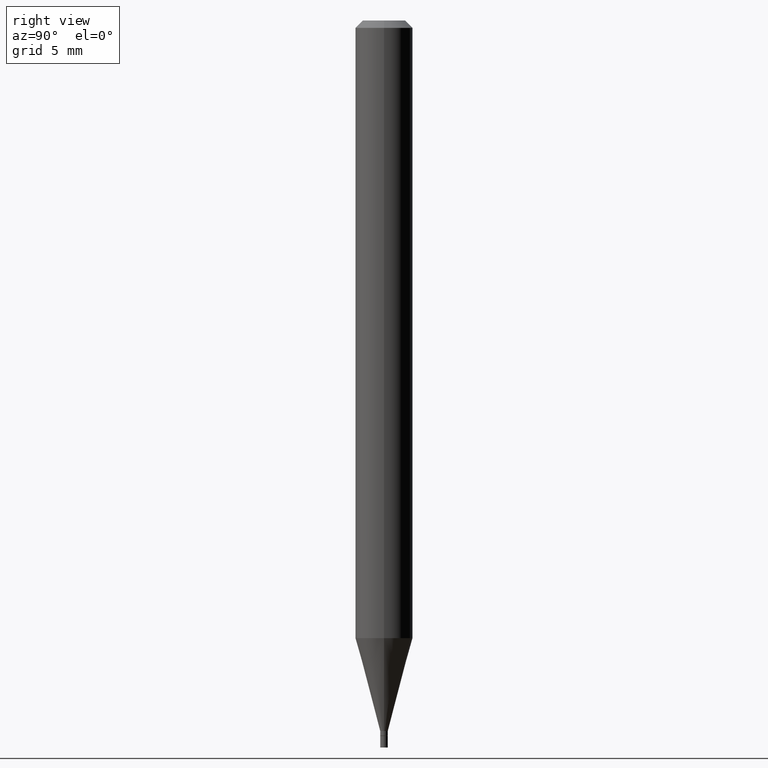
[diagram: clean part render]
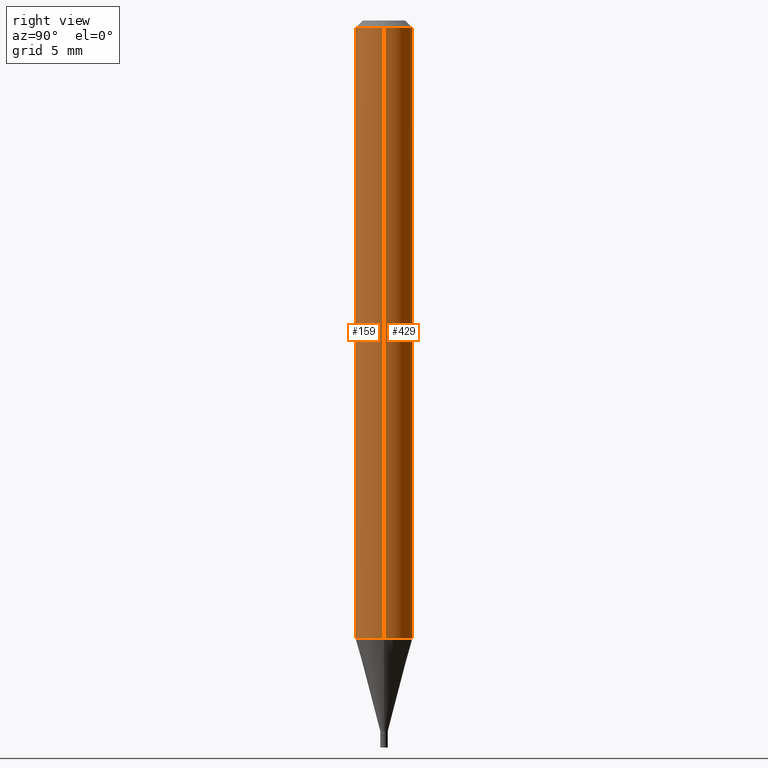
[diagram: same view with one multi-face feature highlighted, each face labeled with its STEP entity id]
A machine part, right view. The highlighted faces form ONE feature: a constant-radius fillet chain: 2 tangent blend faces with common blend radius 1.4999 mm. The faces share edges in the B-rep.
Their STEP definitions:
[1] entity #429 (Cylinder):
#14 = CARTESIAN_POINT ( 'NONE',  ( 0.05904999999999998445, -4.850083061227587038E-15, -1.271018998652473808 ) ) ;
#16 = ORIENTED_EDGE ( 'NONE', *, *, #204, .F. ) ;
#26 = FACE_OUTER_BOUND ( 'NONE', #51, .T. ) ;
#31 = CYLINDRICAL_SURFACE ( 'NONE', #219, 0.05904999999999999832 ) ;
#36 = DIRECTION ( 'NONE',  ( -2.445468806185136597E-29, 3.491481338843145583E-15, 1.000000000000000000 ) ) ;
#51 = EDGE_LOOP ( 'NONE', ( #459, #324, #16, #118 ) ) ;
#91 = DIRECTION ( 'NONE',  ( -2.445468806185136597E-29, 3.491481338843145583E-15, 1.000000000000000000 ) ) ;
#98 = DIRECTION ( 'NONE',  ( 1.000000000000000000, -6.982962677686273021E-15, 0.000000000000000000 ) ) ;
#108 = CIRCLE ( 'NONE', #189, 0.05904999999999999832 ) ;
#118 = ORIENTED_EDGE ( 'NONE', *, *, #275, .F. ) ;
#124 = CARTESIAN_POINT ( 'NONE',  ( 0.05904999999999999832, -4.123439461173740327E-16, 2.879382386107500220E-30 ) ) ;
#130 = DIRECTION ( 'NONE',  ( 1.000000000000000000, -6.982962677686266711E-15, 4.876176775795936353E-29 ) ) ;
#141 = VERTEX_POINT ( 'NONE', #154 ) ;
#154 = CARTESIAN_POINT ( 'NONE',  ( 0.05904999999999999832, -4.647161662000212105E-16, -0.01499999999999999944 ) ) ;
#168 = CARTESIAN_POINT ( 'NONE',  ( -0.05904999999999999832, -1.825480182130091092E-15, -0.01499999999999999944 ) ) ;
#169 = VERTEX_POINT ( 'NONE', #14 ) ;
#170 = CARTESIAN_POINT ( 'NONE',  ( 0.000000000000000000, 0.000000000000000000, 0.000000000000000000 ) ) ;
#175 = DIRECTION ( 'NONE',  ( -2.445468806185136877E-29, 3.491481338843145188E-15, 1.000000000000000000 ) ) ;
#189 = AXIS2_PLACEMENT_3D ( 'NONE', #414, #268, #98 ) ;
#195 = CARTESIAN_POINT ( 'NONE',  ( 3.668203209277705088E-31, -5.237222008264718399E-17, -0.01499999999999999944 ) ) ;
#199 = CARTESIAN_POINT ( 'NONE',  ( -0.05904999999999999832, 4.195754854663391478E-16, -2.904631170795521892E-30 ) ) ;
#204 = EDGE_CURVE ( 'NONE', #141, #315, #441, .T. ) ;
#211 = DIRECTION ( 'NONE',  ( -2.445468806185136877E-29, 3.491481338843145188E-15, 1.000000000000000000 ) ) ;
#219 = AXIS2_PLACEMENT_3D ( 'NONE', #170, #36, #130 ) ;
#256 = DIRECTION ( 'NONE',  ( 1.000000000000000000, -6.982962677686266711E-15, 0.000000000000000000 ) ) ;
#260 = EDGE_CURVE ( 'NONE', #296, #315, #375, .T. ) ;
#268 = DIRECTION ( 'NONE',  ( -2.445468806185136597E-29, 3.491481338843145583E-15, 1.000000000000000000 ) ) ;
#275 = EDGE_CURVE ( 'NONE', #169, #141, #395, .T. ) ;
#277 = CARTESIAN_POINT ( 'NONE',  ( -0.05904999999999998445, -4.018163629643874203E-15, -1.271018998652473808 ) ) ;
#285 = VECTOR ( 'NONE', #211, 39.37007874015748143 ) ;
#296 = VERTEX_POINT ( 'NONE', #277 ) ;
#315 = VERTEX_POINT ( 'NONE', #168 ) ;
#324 = ORIENTED_EDGE ( 'NONE', *, *, #260, .T. ) ;
#370 = VECTOR ( 'NONE', #175, 39.37007874015748143 ) ;
#375 = LINE ( 'NONE', #199, #285 ) ;
#395 = LINE ( 'NONE', #124, #370 ) ;
#399 = AXIS2_PLACEMENT_3D ( 'NONE', #195, #91, #256 ) ;
#414 = CARTESIAN_POINT ( 'NONE',  ( 3.108237313273292970E-29, -4.437739115110212907E-15, -1.271018998652473808 ) ) ;
#429 = ADVANCED_FACE ( 'NONE', ( #26 ), #31, .T. ) ;
#430 = EDGE_CURVE ( 'NONE', #169, #296, #108, .T. ) ;
#441 = CIRCLE ( 'NONE', #399, 0.05904999999999999832 ) ;
#459 = ORIENTED_EDGE ( 'NONE', *, *, #430, .T. ) ;
[2] entity #159 (Cylinder):
#4 = CIRCLE ( 'NONE', #458, 0.05904999999999999832 ) ;
#14 = CARTESIAN_POINT ( 'NONE',  ( 0.05904999999999998445, -4.850083061227587038E-15, -1.271018998652473808 ) ) ;
#50 = CARTESIAN_POINT ( 'NONE',  ( 0.000000000000000000, 0.000000000000000000, 0.000000000000000000 ) ) ;
#94 = ORIENTED_EDGE ( 'NONE', *, *, #260, .F. ) ;
#107 = DIRECTION ( 'NONE',  ( -2.445468806185136597E-29, 3.491481338843145583E-15, 1.000000000000000000 ) ) ;
#120 = CYLINDRICAL_SURFACE ( 'NONE', #158, 0.05904999999999999832 ) ;
#124 = CARTESIAN_POINT ( 'NONE',  ( 0.05904999999999999832, -4.123439461173740327E-16, 2.879382386107500220E-30 ) ) ;
#141 = VERTEX_POINT ( 'NONE', #154 ) ;
#154 = CARTESIAN_POINT ( 'NONE',  ( 0.05904999999999999832, -4.647161662000212105E-16, -0.01499999999999999944 ) ) ;
#158 = AXIS2_PLACEMENT_3D ( 'NONE', #50, #191, #329 ) ;
#159 = ADVANCED_FACE ( 'NONE', ( #364 ), #120, .T. ) ;
#168 = CARTESIAN_POINT ( 'NONE',  ( -0.05904999999999999832, -1.825480182130091092E-15, -0.01499999999999999944 ) ) ;
#169 = VERTEX_POINT ( 'NONE', #14 ) ;
#175 = DIRECTION ( 'NONE',  ( -2.445468806185136877E-29, 3.491481338843145188E-15, 1.000000000000000000 ) ) ;
#191 = DIRECTION ( 'NONE',  ( -2.445468806185136597E-29, 3.491481338843145583E-15, 1.000000000000000000 ) ) ;
#194 = AXIS2_PLACEMENT_3D ( 'NONE', #350, #107, #312 ) ;
#199 = CARTESIAN_POINT ( 'NONE',  ( -0.05904999999999999832, 4.195754854663391478E-16, -2.904631170795521892E-30 ) ) ;
#211 = DIRECTION ( 'NONE',  ( -2.445468806185136877E-29, 3.491481338843145188E-15, 1.000000000000000000 ) ) ;
#234 = DIRECTION ( 'NONE',  ( 1.000000000000000000, -6.982962677686273021E-15, 0.000000000000000000 ) ) ;
#260 = EDGE_CURVE ( 'NONE', #296, #315, #375, .T. ) ;
#273 = CARTESIAN_POINT ( 'NONE',  ( 3.108237313273292970E-29, -4.437739115110212907E-15, -1.271018998652473808 ) ) ;
#274 = DIRECTION ( 'NONE',  ( -2.445468806185136597E-29, 3.491481338843145583E-15, 1.000000000000000000 ) ) ;
#275 = EDGE_CURVE ( 'NONE', #169, #141, #395, .T. ) ;
#276 = EDGE_LOOP ( 'NONE', ( #94, #431, #451, #407 ) ) ;
#277 = CARTESIAN_POINT ( 'NONE',  ( -0.05904999999999998445, -4.018163629643874203E-15, -1.271018998652473808 ) ) ;
#285 = VECTOR ( 'NONE', #211, 39.37007874015748143 ) ;
#296 = VERTEX_POINT ( 'NONE', #277 ) ;
#312 = DIRECTION ( 'NONE',  ( 1.000000000000000000, -6.982962677686266711E-15, 0.000000000000000000 ) ) ;
#315 = VERTEX_POINT ( 'NONE', #168 ) ;
#319 = CIRCLE ( 'NONE', #194, 0.05904999999999999832 ) ;
#329 = DIRECTION ( 'NONE',  ( 1.000000000000000000, -6.982962677686266711E-15, 4.876176775795936353E-29 ) ) ;
#350 = CARTESIAN_POINT ( 'NONE',  ( 3.668203209277705088E-31, -5.237222008264718399E-17, -0.01499999999999999944 ) ) ;
#364 = FACE_OUTER_BOUND ( 'NONE', #276, .T. ) ;
#368 = EDGE_CURVE ( 'NONE', #315, #141, #319, .T. ) ;
#370 = VECTOR ( 'NONE', #175, 39.37007874015748143 ) ;
#375 = LINE ( 'NONE', #199, #285 ) ;
#395 = LINE ( 'NONE', #124, #370 ) ;
#401 = EDGE_CURVE ( 'NONE', #296, #169, #4, .T. ) ;
#407 = ORIENTED_EDGE ( 'NONE', *, *, #368, .F. ) ;
#431 = ORIENTED_EDGE ( 'NONE', *, *, #401, .T. ) ;
#451 = ORIENTED_EDGE ( 'NONE', *, *, #275, .T. ) ;
#458 = AXIS2_PLACEMENT_3D ( 'NONE', #273, #274, #234 ) ;